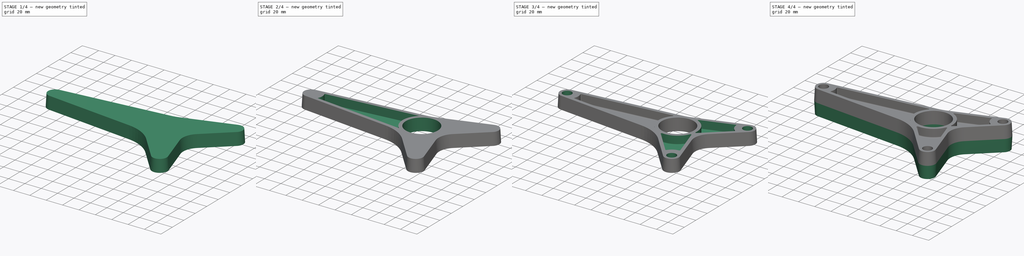
[diagram: build sequence overview — one tinted view per stage of 4, left to right]
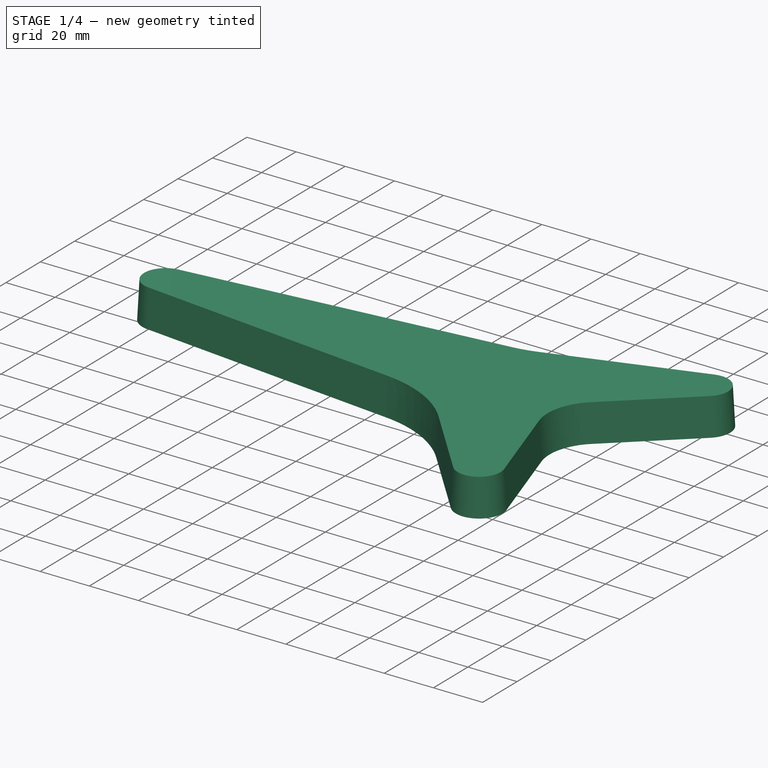
[diagram: stage 1 of 4 — iso view after this stage's code; geometry added in this stage tinted green]
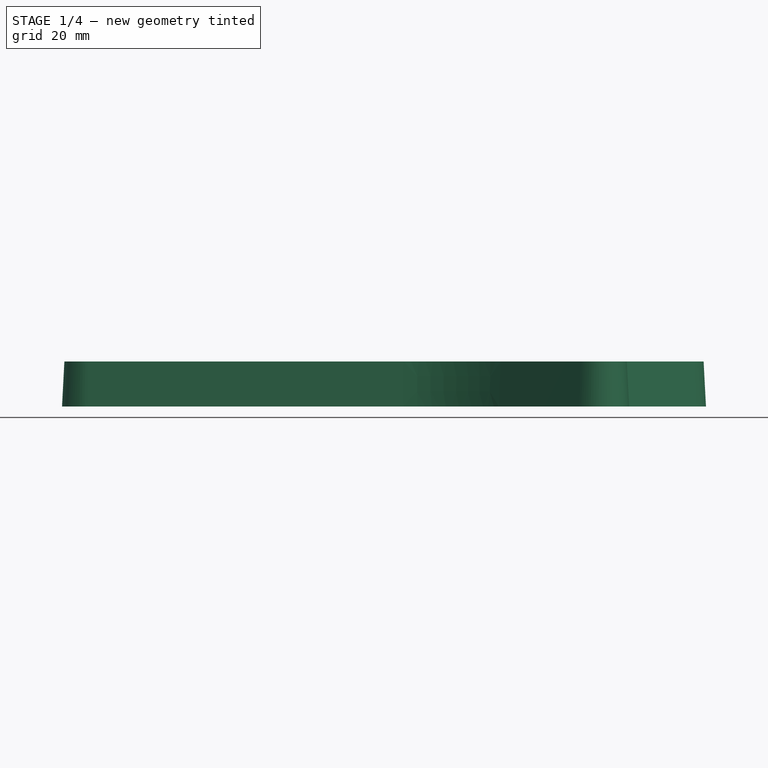
[diagram: stage 1 of 4 — front view after this stage's code; geometry added in this stage tinted green]
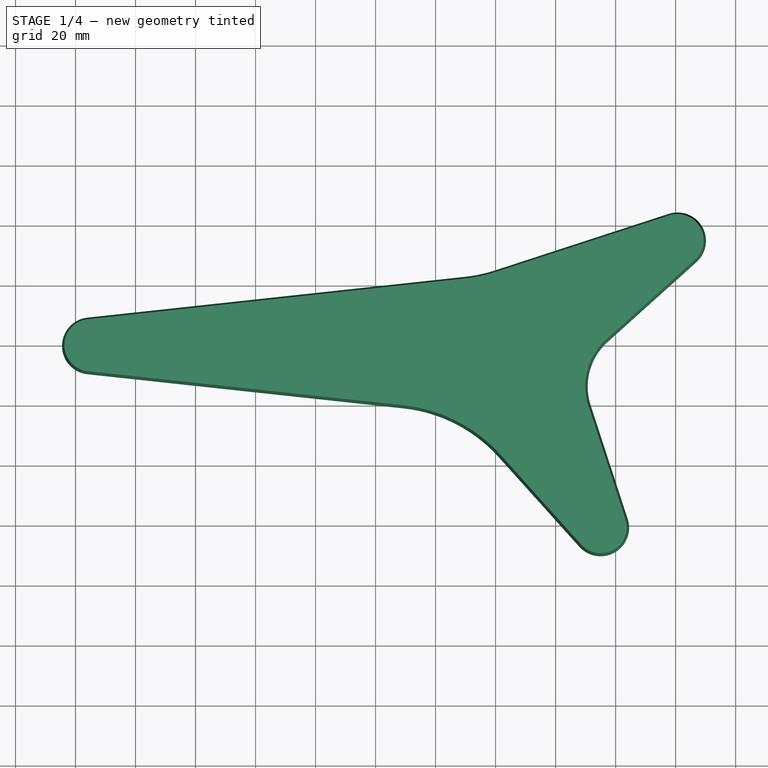
[diagram: stage 1 of 4 — top view after this stage's code; geometry added in this stage tinted green]
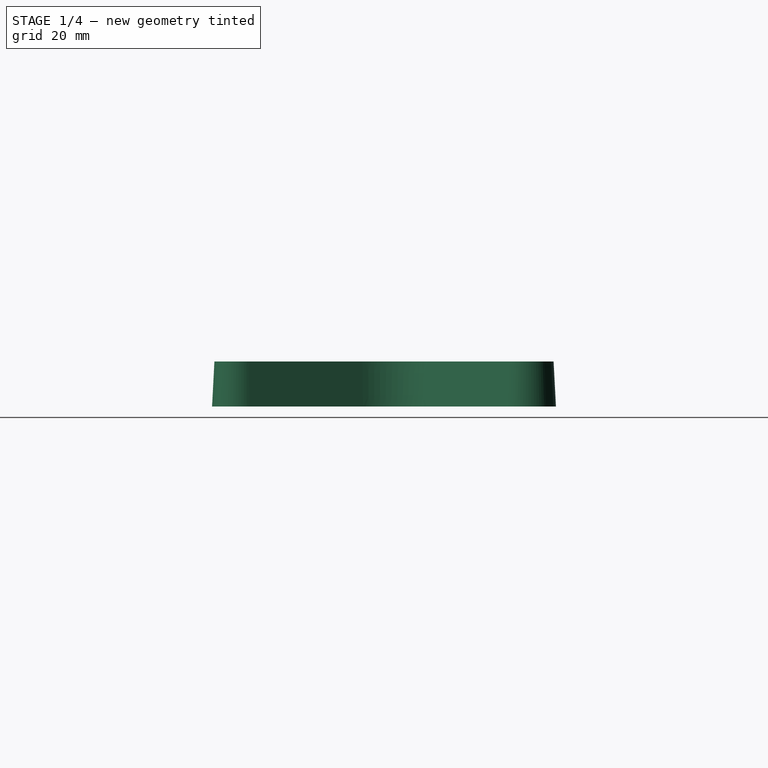
[diagram: stage 1 of 4 — right view after this stage's code; geometry added in this stage tinted green]
FCSTD DOCUMENT  (FreeCAD 0.17R10064 (Git))
Label: CAD_Challenge15_moderate
License: CreativeCommons Attribution-NonCommercial
LicenseURL: http://creativecommons.org/licenses/by-nc/4.0/
objects: Sketcher::SketchObject×5, PartDesign::Pocket×4, PartDesign::Body×2, PartDesign::Pad×1, PartDesign::Draft×1, PartDesign::Fillet×1, Part::Mirroring×1, PartDesign::Boolean×1
note: 21 computed .brp shape members not serialized (recipe doc carries the construction recipe); baked Part::Feature solids carry a one-line shape summary decoded from their .brp

FEATURE [Sketcher::SketchObject] Sketch
  MapMode = 5
  Support = -> [XY_Plane]
  sketch-geometry (15):
    g0: LineSegment StartX=-136.02 StartY=9.44504 StartZ=0 EndX=-10.2321 EndY=23.0343 EndZ=0
    g1: LineSegment StartX=-0.114208 StartY=25.2043 StartZ=0 EndX=57.679 EndY=44.0327 EndZ=0
    g2: ArcOfCircle CenterX=60.6218 CenterY=35 CenterZ=0 NormalX=0 NormalY=0 NormalZ=1 Radius=9.5 StartAngle=5.44464 EndAngle=8.16893
    g3: LineSegment StartX=66.973 StartY=27.9352 StartZ=0 EndX=37.3313 EndY=1.28779 EndZ=0
    g4: ArcOfCircle CenterX=50.7022 CenterY=-13.5856 CenterZ=0 NormalX=0 NormalY=0 NormalZ=1 Radius=20 StartAngle=2.30305 EndAngle=3.45654
    g5: LineSegment StartX=31.6859 StartY=-19.7809 StartZ=0 EndX=44.0327 EndY=-57.679 EndZ=0
    g6: ArcOfCircle CenterX=35 CenterY=-60.6218 CenterZ=0 NormalX=0 NormalY=0 NormalZ=1 Radius=9.5 StartAngle=3.87384 EndAngle=6.59813
    g7: LineSegment StartX=27.9351 StartY=-66.973 StartZ=0 EndX=1.08275 EndY=-37.1032 EndZ=0
    g8: LineSegment StartX=-30.7304 StartY=-20.8198 StartZ=0 EndX=-136.02 EndY=-9.44504 EndZ=0
    g9: ArcOfCircle CenterX=-135 CenterY=0 CenterZ=0 NormalX=0 NormalY=0 NormalZ=1 Radius=9.5 StartAngle=1.67841 EndAngle=4.60477
    g10: ArcOfCircle CenterX=-15.6024 CenterY=72.745 CenterZ=0 NormalX=0 NormalY=0 NormalZ=1 Radius=50 StartAngle=4.82 EndAngle=5.02733
    g11: ArcOfCircle CenterX=-36.1008 CenterY=-70.5305 CenterZ=0 NormalX=0 NormalY=0 NormalZ=1 Radius=50 StartAngle=0.732252 EndAngle=1.46318
    g12: LineSegment [constr] StartX=0 StartY=0 StartZ=0 EndX=35 EndY=-60.6218 EndZ=0
    g13: LineSegment [constr] StartX=0 StartY=0 StartZ=0 EndX=60.6218 EndY=35 EndZ=0
    g14: Circle [constr] CenterX=0 CenterY=0 CenterZ=0 NormalX=0 NormalY=0 NormalZ=1 Radius=19.5
  constraints (42):
    c: Tangent(g1,g2) = 1.5708
    c: Coincident(g2,g3)
    c: Tangent(g3,g4) = -1.5708
    c: Coincident(g4,g5)
    c: Tangent(g8,g9) = 1.5708
    c: Coincident(g9,g0)
    c: Tangent(g0,g10) = -1.5708
    c: Tangent(g1,g10) = -1.5708
    c: Tangent(g8,g11) = -1.5708
    c: Tangent(g7,g11) = -1.5708
    c: Radius(g4) = 20
    c: Radius(g10) = 50
    c: Radius(g9) = 9.5
    c: Tangent(g9,g0)
    c: PointOnObject(g9,g-1)
    c: Tangent(g5,g4)
    c: Tangent(g3,g2)
    c: Angle(g12,g-1) = 1.0472
    c: PointOnObject(g13,g-1)
    c: Coincident(g13,g2)
    c: Coincident(g13,g12)
    c: Perpendicular(g13,g12)
    c: Distance(g9,g12) = 135
    c: Equal(g12,g13)
    c: Distance(g13) = 70
    c: Distance(g12,g5) = 24
    c: Distance(g12,g3) = 24
    c: Distance(g12,g0) = 24
    c: Coincident(g6,g7)
    c: Tangent(g7,g6)
    c: Coincident(g5,g6)
    c: Coincident(g12,g6)
    c: Equal(g6,g9)
    c: Equal(g9,g2)
    c: Tangent(g6,g5)
    c: Radius(g11) = 50
    c: Coincident(g14,g-1)
    c: Radius(g14) = 19.5
    c: Coincident(g12,g-1)
    c: Distance(g-1,g7) = 24
    c: Distance(g-1,g8) = 24
    c: Distance(g-1,g1) = 24
FEATURE [PartDesign::Pad] Pad
  Length = 15
  Length2 = 100
  Profile = -> Sketch
  Type = 0
FEATURE [PartDesign::Draft] Draft
  Angle = 3
  Base = -> Pad [Face11,Face10,Face9,Face12,Face2,Face1,Face3,Face4,Face5,Face6,Face7,Face8]
  BaseFeature = -> Pad
  NeutralPlane = -> Pad [Face13]
  PullDirection = -> Pad [Edge29]
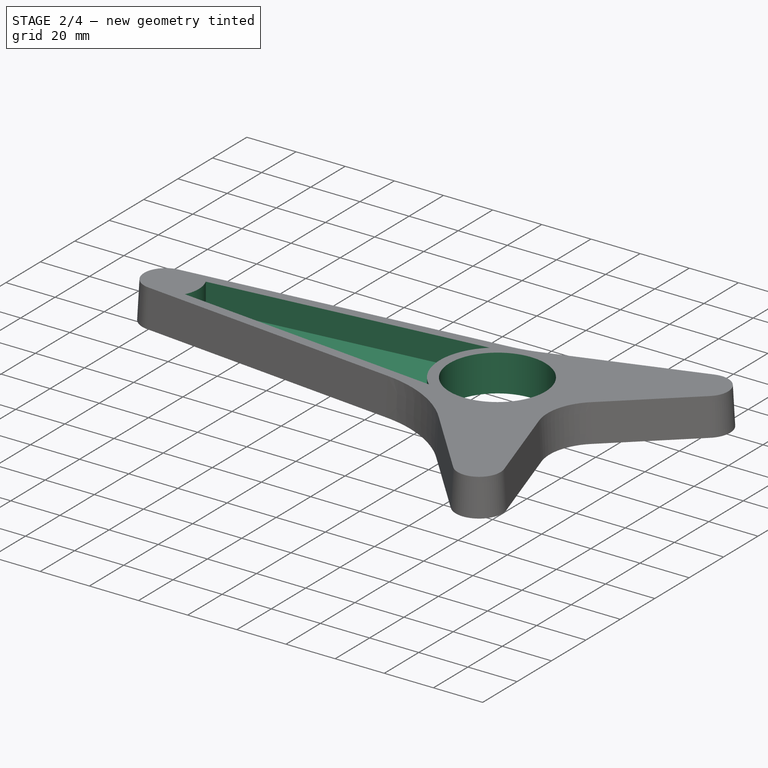
[diagram: stage 2 of 4 — iso view after this stage's code; geometry added in this stage tinted green]
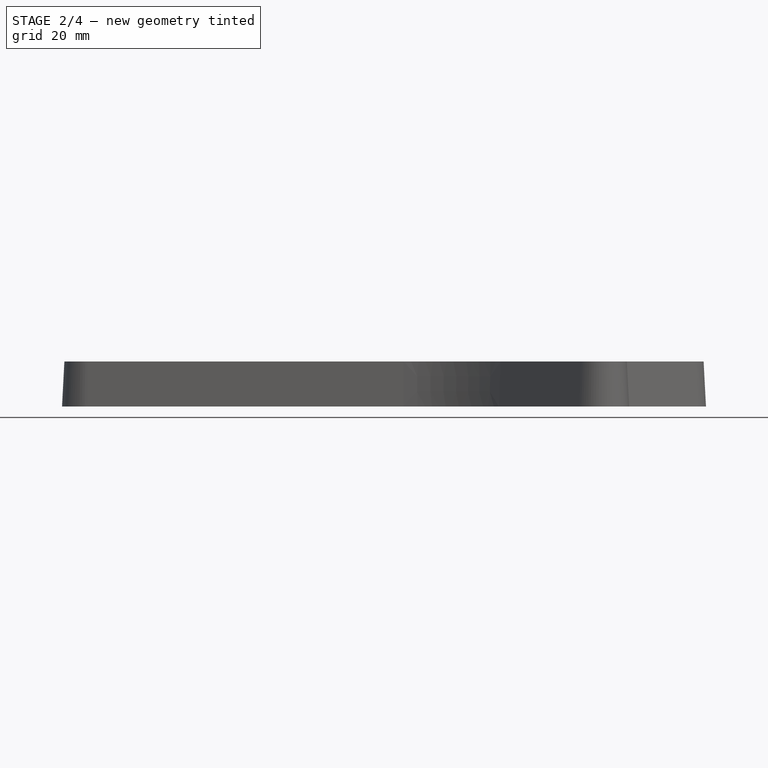
[diagram: stage 2 of 4 — front view after this stage's code; geometry added in this stage tinted green]
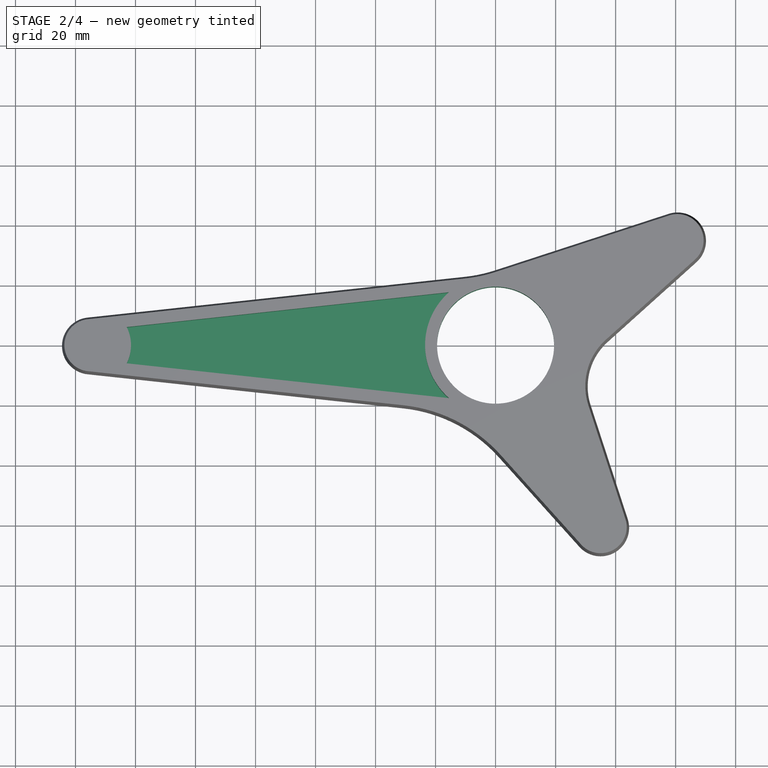
[diagram: stage 2 of 4 — top view after this stage's code; geometry added in this stage tinted green]
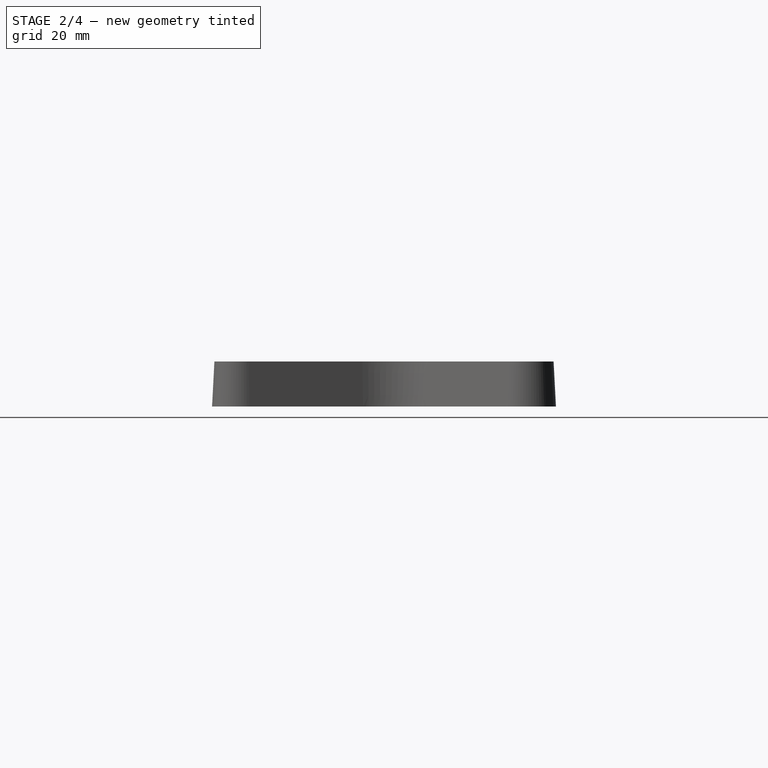
[diagram: stage 2 of 4 — right view after this stage's code; geometry added in this stage tinted green]
FEATURE [Sketcher::SketchObject] Sketch001
  MapMode = 5
  Placement = pos=(0,0,15) rot=(0,0,1;0rad)
  Support = -> [Draft]
  sketch-geometry (1):
    g0: Circle CenterX=0 CenterY=0 CenterZ=0 NormalX=0 NormalY=0 NormalZ=1 Radius=19.5
  constraints (2):
    c: Coincident(g0,g-1)
    c: Radius(g0) = 19.5
FEATURE [PartDesign::Pocket] Pocket
  BaseFeature = -> Draft
  Length = 5
  Profile = -> Sketch001
  Type = 1
FEATURE [Sketcher::SketchObject] Sketch002
  ExternalGeometry = -> [Pocket]
  MapMode = 5
  Placement = pos=(0,0,15) rot=(0,0,1;0rad)
  Support = -> [Pocket]
  sketch-geometry (4):
    g0: LineSegment StartX=-15.516 StartY=17.6494 StartZ=0 EndX=-122.929 EndY=6.04535 EndZ=0
    g1: LineSegment StartX=-122.929 StartY=-6.04535 StartZ=0 EndX=-15.516 EndY=-17.6494 EndZ=0
    g2: ArcOfCircle CenterX=0 CenterY=0 CenterZ=0 NormalX=0 NormalY=0 NormalZ=1 Radius=23.5 StartAngle=2.29196 EndAngle=3.99123
    g3: ArcOfCircle CenterX=-135 CenterY=0 CenterZ=0 NormalX=0 NormalY=0 NormalZ=1 Radius=13.5 StartAngle=5.81888 EndAngle=6.74749
  constraints (12):
    c: Coincident(g0,g2)
    c: Coincident(g2,g-1)
    c: Coincident(g1,g2)
    c: Radius(g2) = 23.5
    c: Parallel(g1,g-4)
    c: Distance(g1,g-4) = 4
    c: Parallel(g0,g-3)
    c: Distance(g-3,g0) = 4
    c: Coincident(g3,g1)
    c: Coincident(g3,g0)
    c: Coincident(g3,g-5)
    c: Radius(g3) = 13.5
FEATURE [PartDesign::Pocket] Pocket001
  BaseFeature = -> Pocket
  Length = 10
  Profile = -> Sketch002
  Type = 0
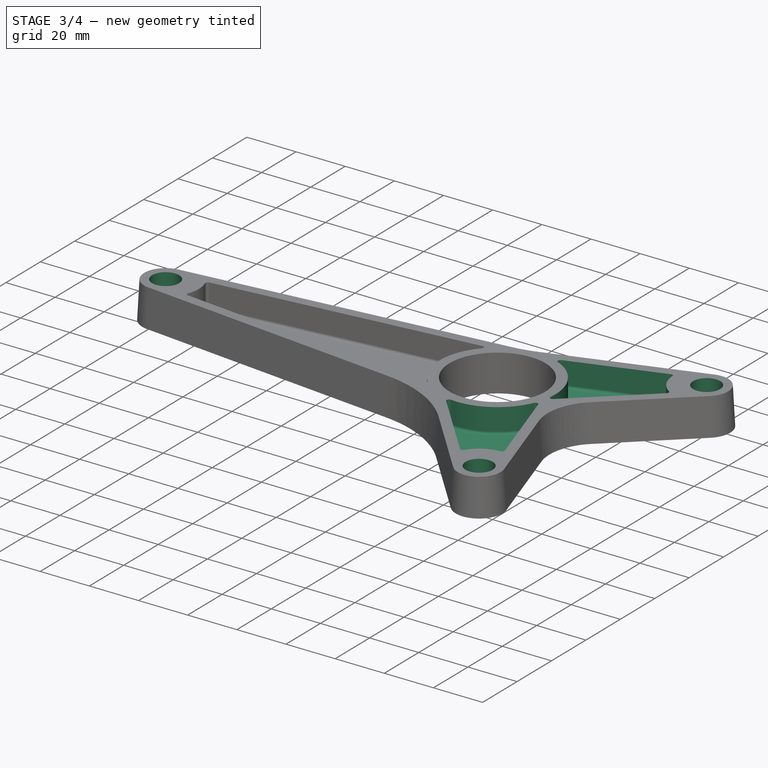
[diagram: stage 3 of 4 — iso view after this stage's code; geometry added in this stage tinted green]
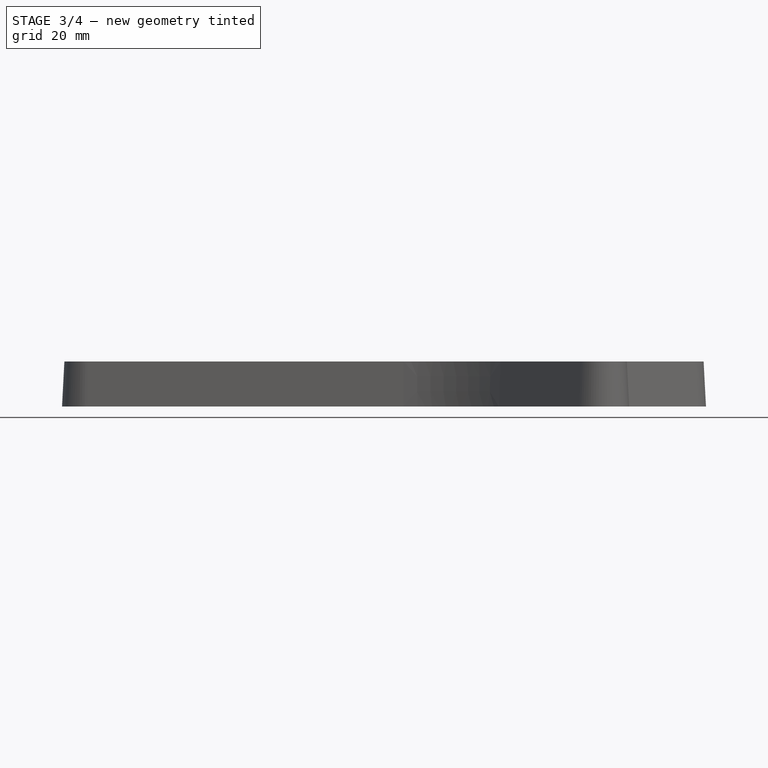
[diagram: stage 3 of 4 — front view after this stage's code; geometry added in this stage tinted green]
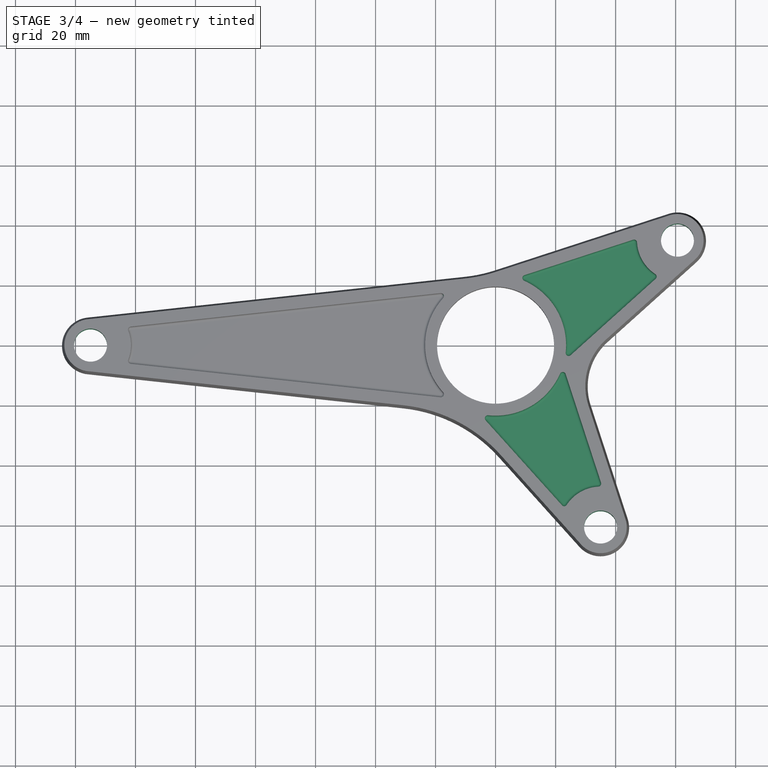
[diagram: stage 3 of 4 — top view after this stage's code; geometry added in this stage tinted green]
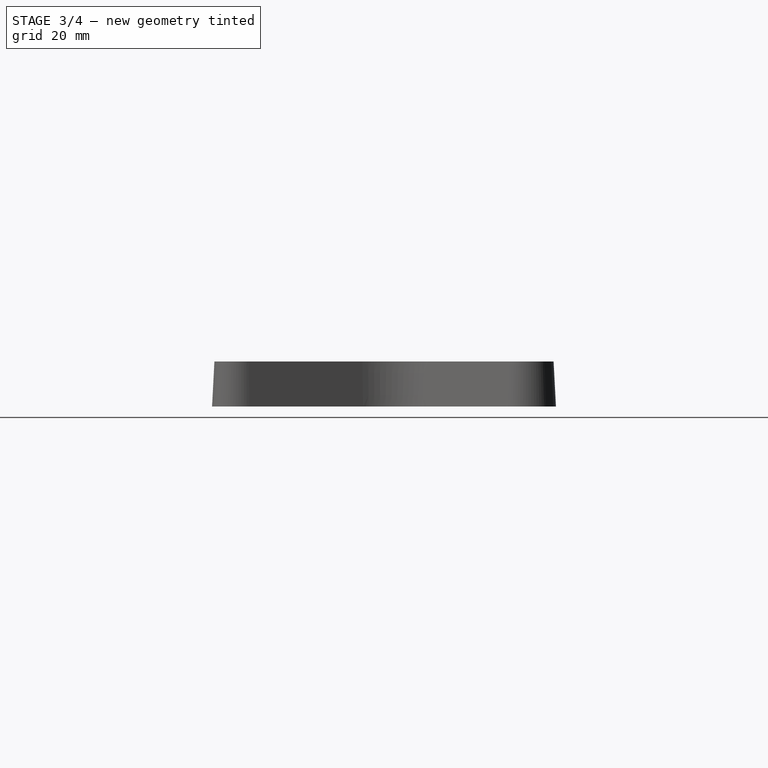
[diagram: stage 3 of 4 — right view after this stage's code; geometry added in this stage tinted green]
FEATURE [Sketcher::SketchObject] Sketch003
  ExternalGeometry = -> [Pocket001]
  MapMode = 5
  Placement = pos=(0,0,15) rot=(0,0,1;0rad)
  Support = -> [Pocket001]
  sketch-geometry (8):
    g0: LineSegment StartX=47.1335 StartY=35.5634 StartZ=0 EndX=6.91328 EndY=22.4601 EndZ=0
    g1: ArcOfCircle CenterX=0 CenterY=0 CenterZ=0 NormalX=0 NormalY=0 NormalZ=1 Radius=23.5 StartAngle=6.05819 EndAngle=7.55538
    g2: LineSegment StartX=22.9077 StartY=-5.24298 StartZ=0 EndX=54.3656 EndY=23.0371 EndZ=0
    g3: ArcOfCircle CenterX=60.6218 CenterY=35 CenterZ=0 NormalX=0 NormalY=0 NormalZ=1 Radius=13.5 StartAngle=3.09985 EndAngle=4.23054
    g4: LineSegment StartX=-5.24298 StartY=-22.9077 StartZ=0 EndX=23.0371 EndY=-54.3656 EndZ=0
    g5: ArcOfCircle CenterX=35 CenterY=-60.6218 CenterZ=0 NormalX=0 NormalY=0 NormalZ=1 Radius=13.5 StartAngle=1.52905 EndAngle=2.65974
    g6: LineSegment StartX=35.5634 StartY=-47.1335 StartZ=0 EndX=22.4601 EndY=-6.91328 EndZ=0
    g7: ArcOfCircle CenterX=0 CenterY=0 CenterZ=0 NormalX=0 NormalY=0 NormalZ=1 Radius=23.5 StartAngle=4.48739 EndAngle=5.98459
  constraints (24):
    c: Coincident(g1,g2)
    c: Coincident(g2,g3)
    c: Coincident(g0,g3)
    c: Coincident(g3,g-3)
    c: Coincident(g1,g-1)
    c: Equal(g1,g-9)
    c: Equal(g-10,g3)
    c: Parallel(g0,g-4)
    c: Coincident(g1,g0)
    c: Distance(g-5,g2) = 4
    c: Parallel(g2,g-5)
    c: Distance(g-4,g0) = 4
    c: Coincident(g5,g6)
    c: Coincident(g6,g7)
    c: Coincident(g4,g7)
    c: Equal(g7,g1)
    c: Coincident(g1,g7)
    c: Parallel(g6,g-6)
    c: Parallel(g4,g-8)
    c: Coincident(g4,g5)
    c: Coincident(g5,g-7)
    c: Equal(g3,g5)
    c: Distance(g-6,g6) = 4
    c: Distance(g4,g-8) = 4
FEATURE [PartDesign::Pocket] Pocket002
  BaseFeature = -> Pocket001
  Length = 10
  Profile = -> Sketch003
  Type = 0
FEATURE [PartDesign::Fillet] Fillet
  Base = -> Pocket002 [Edge55,Edge52,Edge53,Edge54,Edge58,Edge57,Edge59,Edge56,Edge67,Edge60,Edge61,Edge64,Edge62,Edge65,Edge63,Edge66,Edge74,Edge75,Face30,Edge71,Edge70,Edge68]
  BaseFeature = -> Pocket002
  Radius = 1
FEATURE [Sketcher::SketchObject] Sketch004
  ExternalGeometry = -> [Fillet]
  MapMode = 5
  Placement = pos=(0,0,15) rot=(0,0,1;0rad)
  Support = -> [Fillet]
  sketch-geometry (3):
    g0: Circle CenterX=-135 CenterY=0 CenterZ=0 NormalX=0 NormalY=0 NormalZ=1 Radius=5.5
    g1: Circle CenterX=60.6218 CenterY=35 CenterZ=0 NormalX=0 NormalY=0 NormalZ=1 Radius=5.5
    g2: Circle CenterX=35 CenterY=-60.6218 CenterZ=0 NormalX=0 NormalY=0 NormalZ=1 Radius=5.5
  constraints (6):
    c: Coincident(g0,g-3)
    c: Coincident(g1,g-4)
    c: Coincident(g2,g-5)
    c: Equal(g0,g1)
    c: Equal(g1,g2)
    c: Radius(g0) = 5.5
FEATURE [PartDesign::Pocket] Pocket003
  BaseFeature = -> Fillet
  Length = 5
  Profile = -> Sketch004
  Type = 1
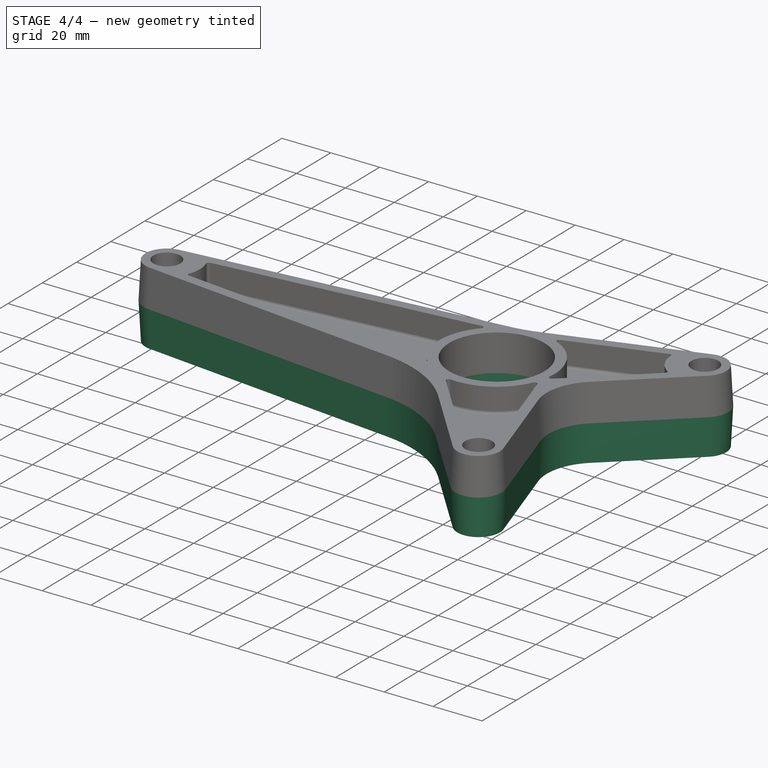
[diagram: stage 4 of 4 — iso view after this stage's code; geometry added in this stage tinted green]
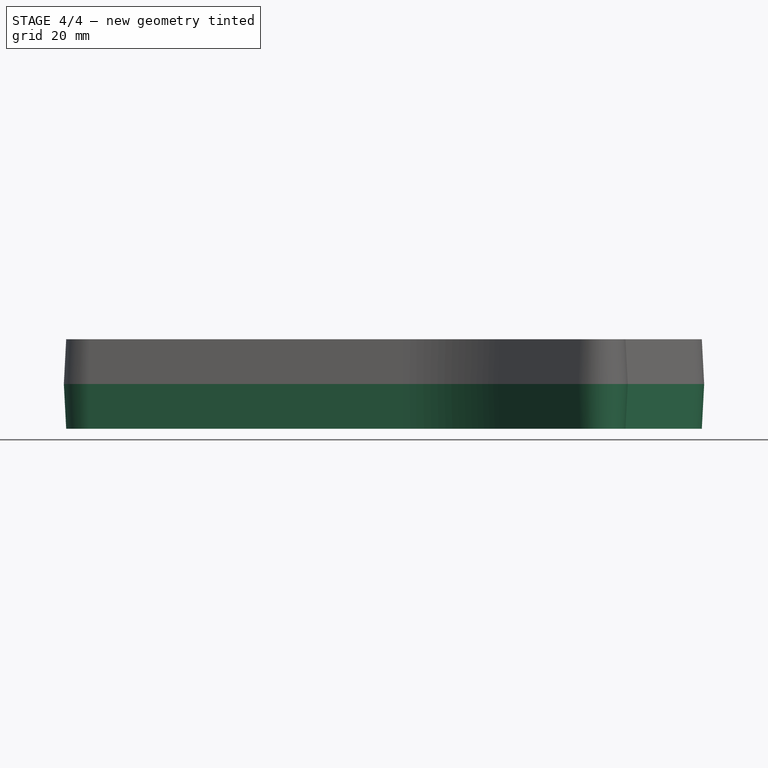
[diagram: stage 4 of 4 — front view after this stage's code; geometry added in this stage tinted green]
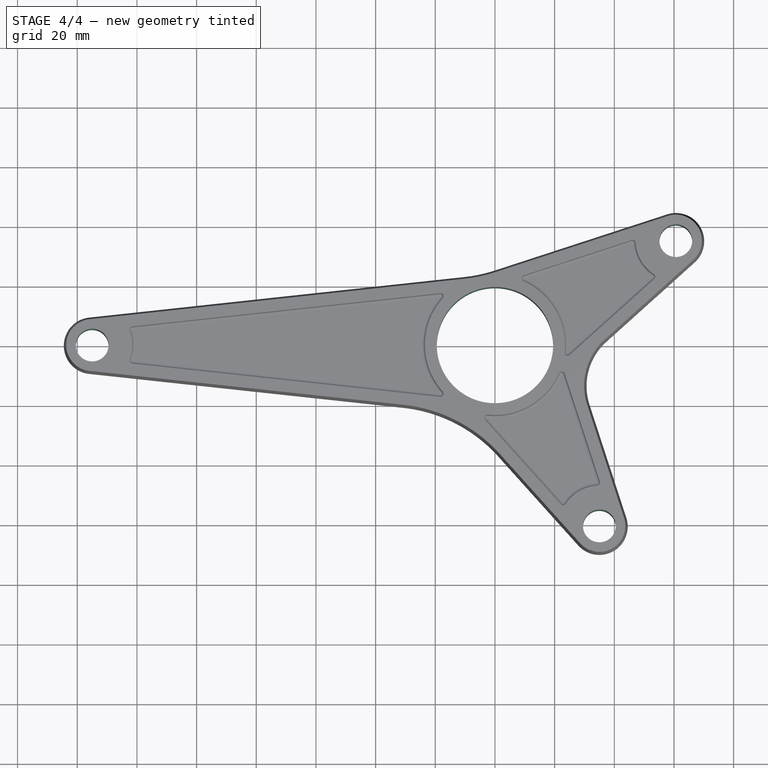
[diagram: stage 4 of 4 — top view after this stage's code; geometry added in this stage tinted green]
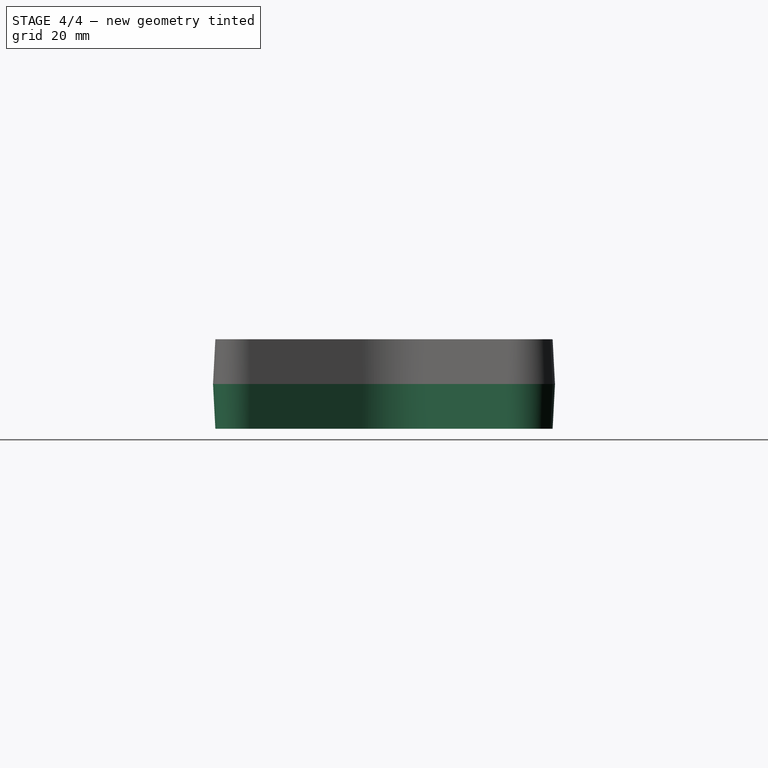
[diagram: stage 4 of 4 — right view after this stage's code; geometry added in this stage tinted green]
FEATURE [PartDesign::Body] Body
  Group = -> [Sketch,Pad,Draft,Sketch001,Pocket,Sketch002,Pocket001,Sketch003,Pocket002,Fillet,Sketch004,Pocket003]
  Origin = -> BodyOrigin
  Tip = -> Pocket003
FEATURE [Part::Mirroring] Part__Mirroring  label="Pocket003 (Mirror #1)"
  Base = (0,0,0)
  Normal = (0,0,1)
  Source = -> Pocket003
FEATURE [PartDesign::Boolean] Boolean
  BaseFeature = -> Part__Mirroring
  Bodies = -> [Body]
  Type = 0
FEATURE [PartDesign::Body] Body001
  BaseFeature = -> Part__Mirroring
  Group = -> [Boolean]
  Origin = -> Body001Origin
  Tip = -> Boolean
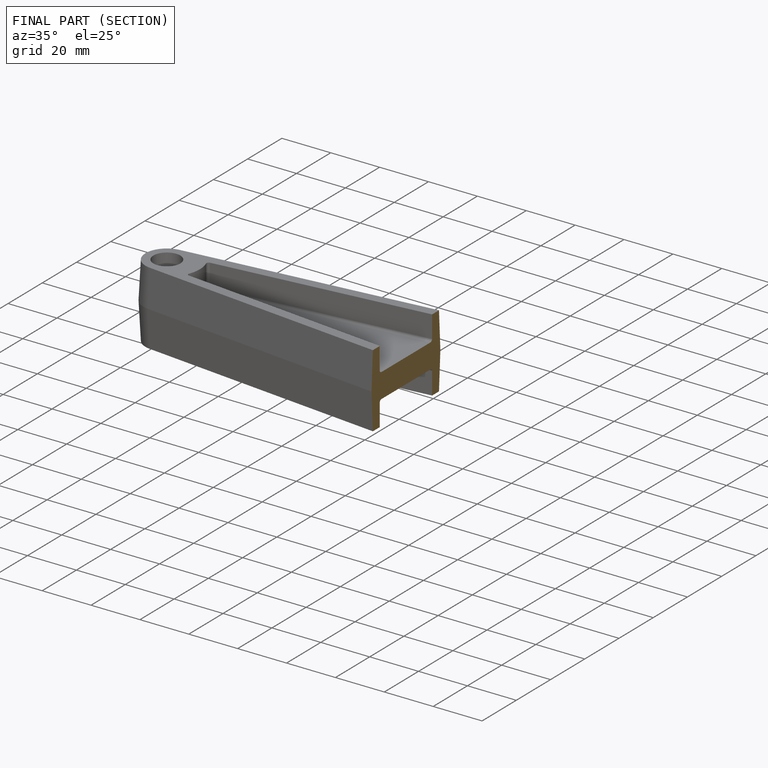
[diagram: finished part — half-section view (interior)]
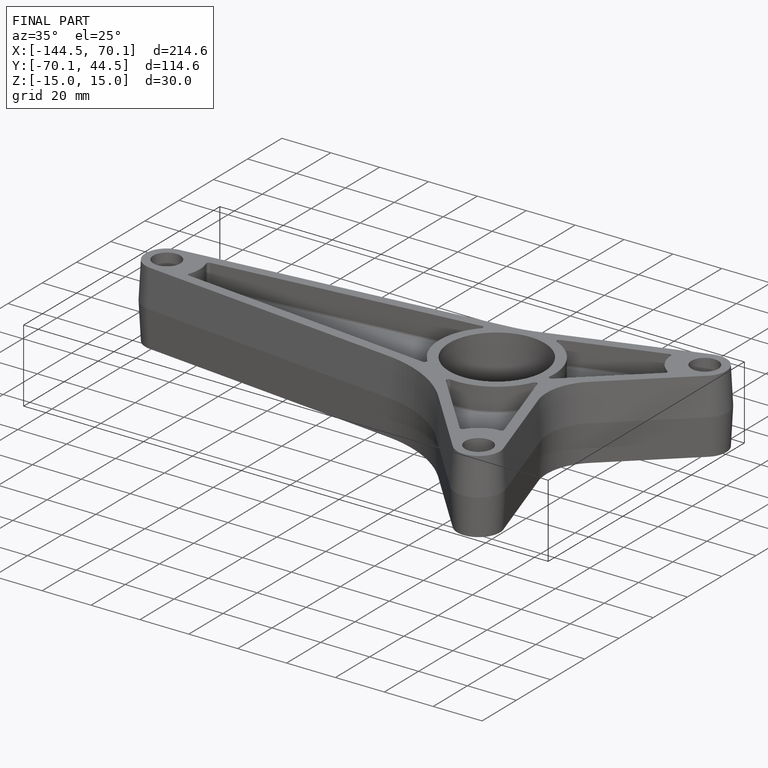
[diagram: finished part — iso view with bounding-box wireframe]
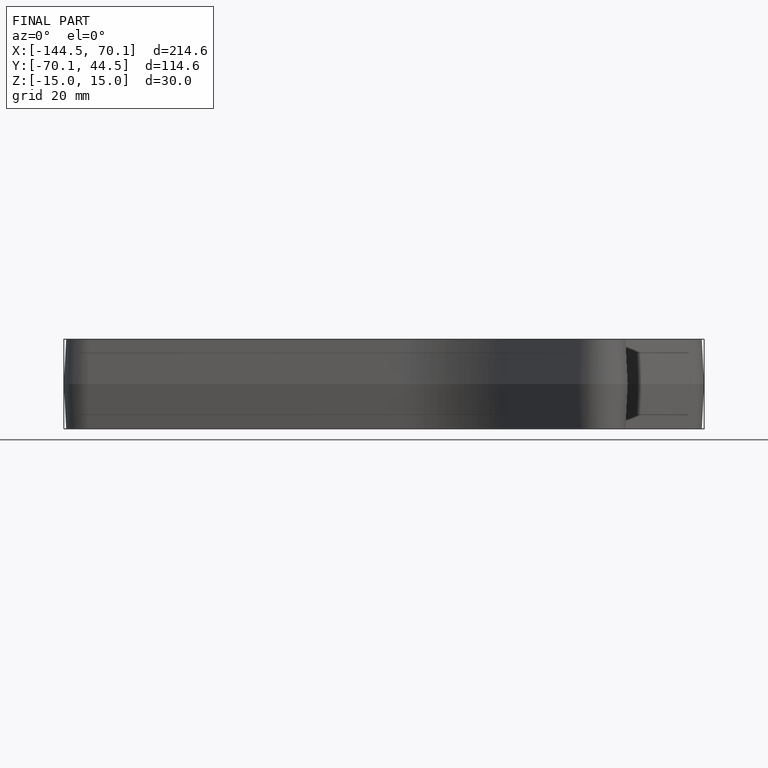
[diagram: finished part — front view with bounding-box wireframe]
